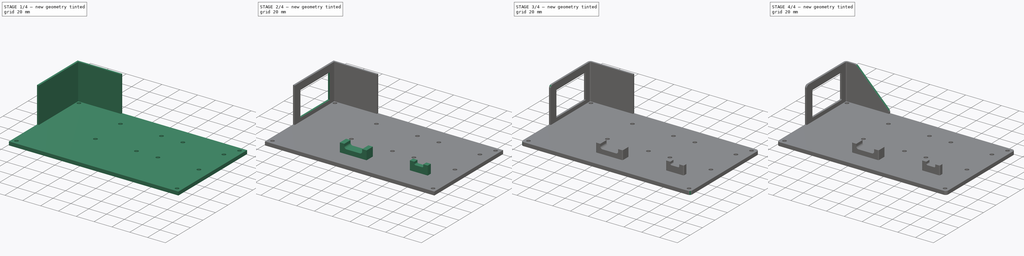
[diagram: build sequence overview — one tinted view per stage of 4, left to right]
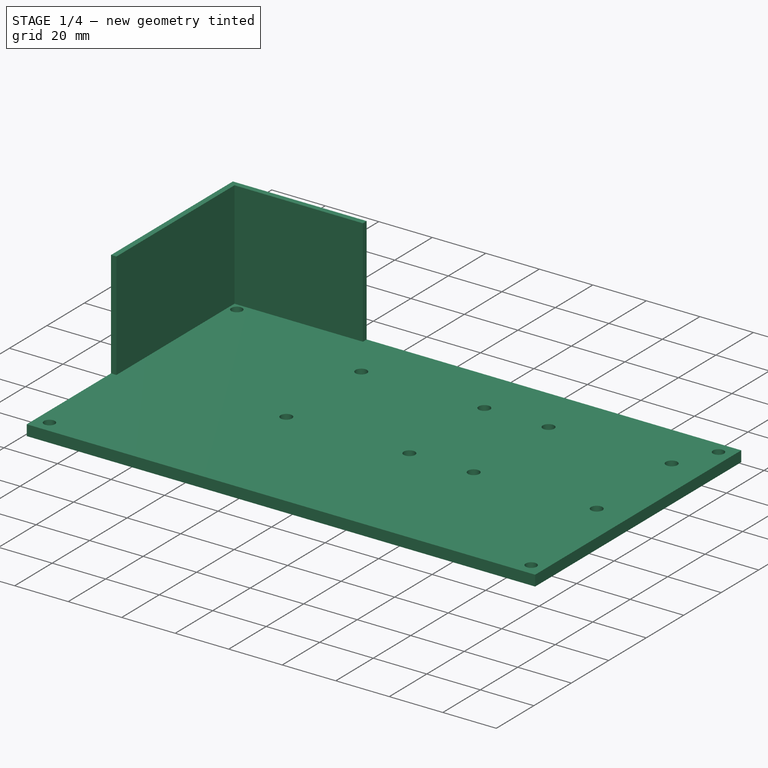
[diagram: stage 1 of 4 — iso view after this stage's code; geometry added in this stage tinted green]
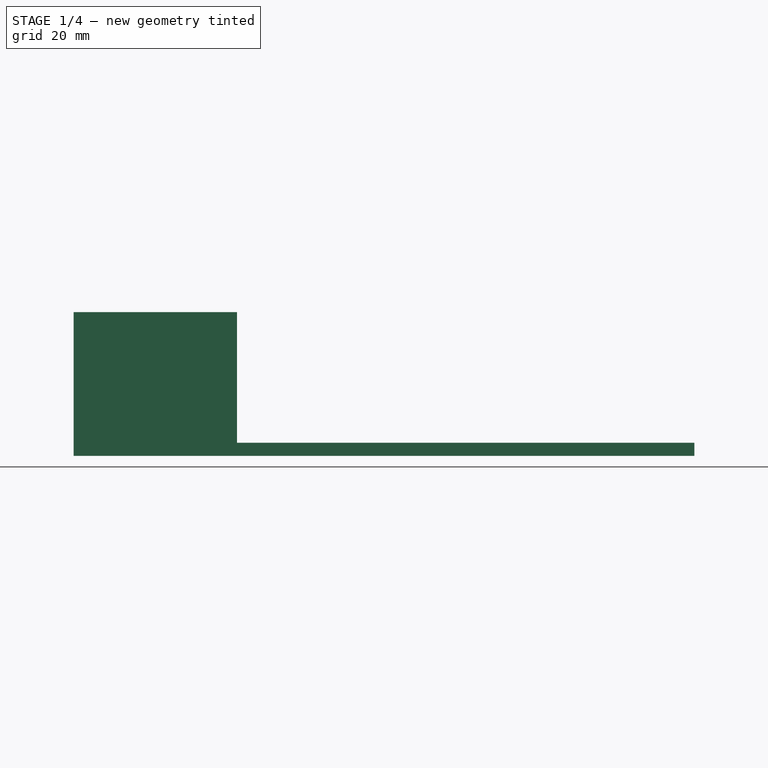
[diagram: stage 1 of 4 — front view after this stage's code; geometry added in this stage tinted green]
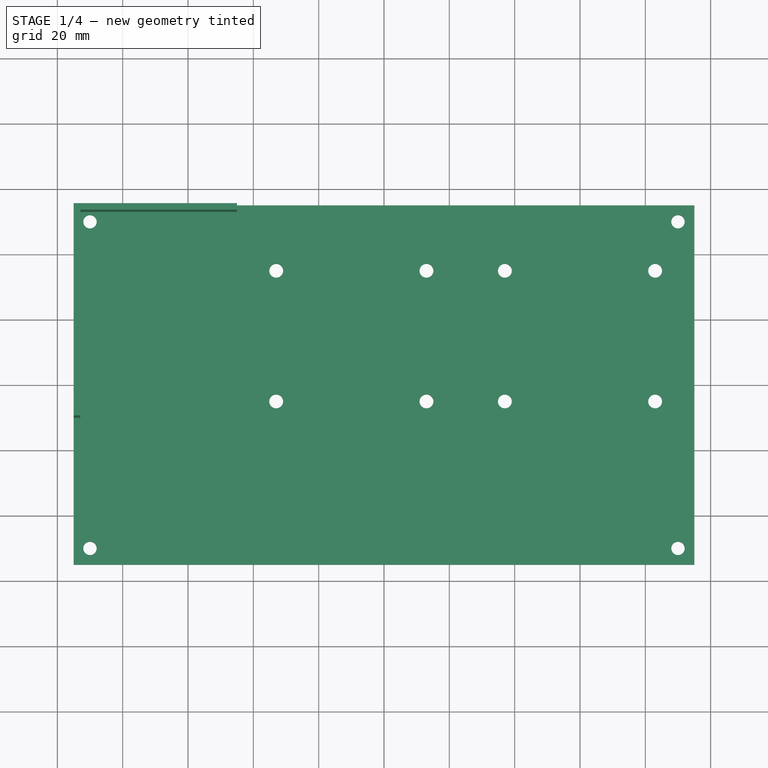
[diagram: stage 1 of 4 — top view after this stage's code; geometry added in this stage tinted green]
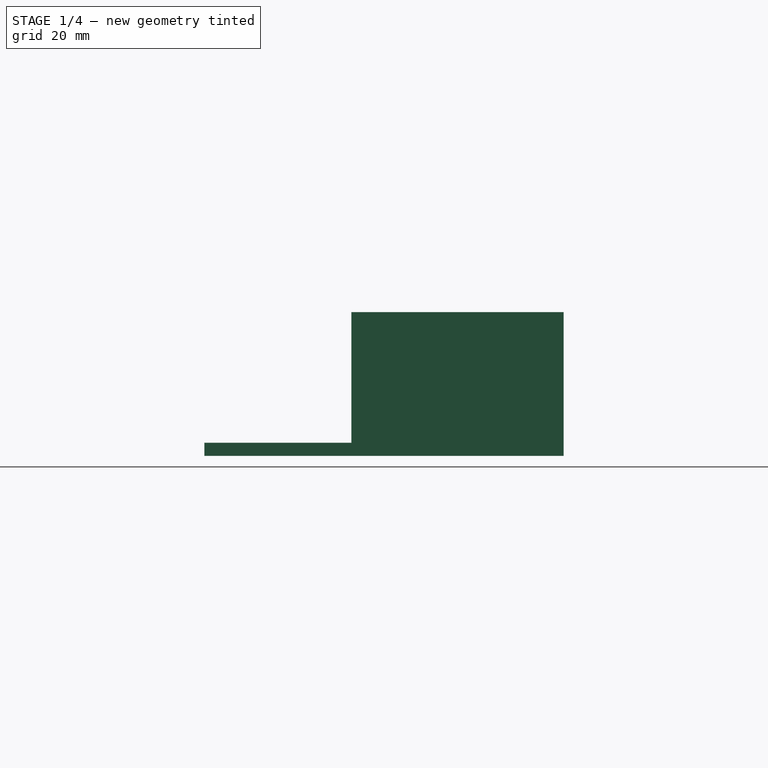
[diagram: stage 1 of 4 — right view after this stage's code; geometry added in this stage tinted green]
FCSTD DOCUMENT  (FreeCAD 0.19R)
Label: power_supply_base
License: All rights reserved
LicenseURL: http://en.wikipedia.org/wiki/All_rights_reserved
objects: Sketcher::SketchObject×6, PartDesign::Fillet×6, PartDesign::Pad×3, PartDesign::Pocket×3, PartDesign::Chamfer×1, PartDesign::Body×1
note: 33 computed .brp shape members not serialized (recipe doc carries the construction recipe); baked Part::Feature solids carry a one-line shape summary decoded from their .brp

FEATURE [Sketcher::SketchObject] Sketch
  FullyConstrained = true
  MapMode = 5
  Support = -> [XY_Plane]
  sketch-geometry (17):
    g0: LineSegment StartX=-95 StartY=55 StartZ=0 EndX=95 EndY=55 EndZ=0
    g1: LineSegment StartX=95 StartY=55 StartZ=0 EndX=95 EndY=-55 EndZ=0
    g2: LineSegment StartX=95 StartY=-55 StartZ=0 EndX=-95 EndY=-55 EndZ=0
    g3: LineSegment StartX=-95 StartY=-55 StartZ=0 EndX=-95 EndY=55 EndZ=0
    g4: LineSegment StartX=95 StartY=15 StartZ=0 EndX=-45 EndY=15 EndZ=0
    g5: LineSegment StartX=-10 StartY=55 StartZ=0 EndX=-10 EndY=-10 EndZ=0
    g6: LineSegment StartX=60 StartY=55 StartZ=0 EndX=60 EndY=-10 EndZ=0
    g7: Circle CenterX=-33 CenterY=35 CenterZ=0 NormalX=0 NormalY=0 NormalZ=1 AngleXU=0 Radius=2.125
    g8: Circle CenterX=-33 CenterY=-5 CenterZ=0 NormalX=0 NormalY=0 NormalZ=1 AngleXU=0 Radius=2.125
    g9: Circle CenterX=13 CenterY=-5 CenterZ=0 NormalX=0 NormalY=0 NormalZ=1 AngleXU=0 Radius=2.125
    g10: Circle CenterX=13 CenterY=35 CenterZ=0 NormalX=0 NormalY=0 NormalZ=1 AngleXU=0 Radius=2.125
    g11: Circle CenterX=37 CenterY=35 CenterZ=0 NormalX=0 NormalY=0 NormalZ=1 AngleXU=0 Radius=2.125
    g12: Circle CenterX=37 CenterY=-5 CenterZ=0 NormalX=0 NormalY=0 NormalZ=1 AngleXU=0 Radius=2.125
    g13: Circle CenterX=83 CenterY=-5 CenterZ=0 NormalX=0 NormalY=0 NormalZ=1 AngleXU=0 Radius=2.125
    g14: Circle CenterX=83 CenterY=35 CenterZ=0 NormalX=0 NormalY=0 NormalZ=1 AngleXU=0 Radius=2.125
    g15: LineSegment StartX=-33 StartY=-5 StartZ=0 EndX=13 EndY=-5 EndZ=0
    g16: LineSegment StartX=37 StartY=-5 StartZ=0 EndX=83 EndY=-5 EndZ=0
  constraints (46):
    c: Coincident(g0,g1)
    c: Coincident(g1,g2)
    c: Coincident(g2,g3)
    c: Coincident(g3,g0)
    c: Horizontal(g0)
    c: Vertical(g3)
    c: Symmetric(g2,g1,g-2)
    c: Symmetric(g1,g0,g-1)
    c: DistanceX(g2,g2) = 190
    c: DistanceY(g3,g3) = 110
    c: PointOnObject(g4,g1)
    c: Horizontal(g4)
    c: PointOnObject(g5,g0)
    c: Vertical(g5)
    c: PointOnObject(g6,g0)
    c: Vertical(g6)
    c: Equal(g5,g6)
    c: DistanceY(g4,g0) = 40
    c: DistanceY(g5,g5) = 65
    c: DistanceX(g5,g6) = 70
    c: DistanceX(g4,g4) = 140
    c: DistanceX(g6,g4) = 35
    c: Symmetric(g14,g11,g6)
    c: Symmetric(g10,g7,g5)
    c: Symmetric(g8,g7,g4)
    c: Vertical(g9,g10)
    c: Symmetric(g12,g11,g4)
    c: Vertical(g13,g14)
    c: Horizontal(g13,g12)
    c: Horizontal(g9,g8)
    c: Equal(g7,g8)
    c: Equal(g8,g10)
    c: Equal(g10,g9)
    c: Equal(g9,g12)
    c: Equal(g12,g11)
    c: Equal(g11,g14)
    c: Equal(g14,g13)
    c: Diameter(g10) = 4.25
    c: Horizontal(g10,g11)
    c: Coincident(g15,g8)
    c: Coincident(g15,g9)
    c: Coincident(g16,g12)
    c: Coincident(g16,g13)
    c: Equal(g15,g16)
    c: DistanceX(g11,g14) = 46
    c: DistanceY(g13,g14) = 40
FEATURE [PartDesign::Pad] Pad
  Direction = (1,1,1)
  Length = 4
  Length2 = 100
  Profile = -> Sketch
  Type = 0
FEATURE [Sketcher::SketchObject] Sketch001
  FullyConstrained = true
  MapMode = 5
  Placement = pos=(0,0,4) rot=(0,0,1;0rad)
  Support = -> [Pad]
  sketch-geometry (6):
    g0: LineSegment StartX=-95 StartY=-10 StartZ=0 EndX=-95 EndY=55 EndZ=0
    g1: LineSegment StartX=-95 StartY=55 StartZ=0 EndX=-45 EndY=55 EndZ=0
    g2: LineSegment StartX=-45 StartY=55 StartZ=0 EndX=-45 EndY=53 EndZ=0
    g3: LineSegment StartX=-45 StartY=53 StartZ=0 EndX=-93 EndY=53 EndZ=0
    g4: LineSegment StartX=-93 StartY=53 StartZ=0 EndX=-93 EndY=-10 EndZ=0
    g5: LineSegment StartX=-93 StartY=-10 StartZ=0 EndX=-95 EndY=-10 EndZ=0
  constraints (18):
    c: Vertical(g0)
    c: Coincident(g0,g1)
    c: Horizontal(g1)
    c: Coincident(g1,g2)
    c: Coincident(g2,g3)
    c: Horizontal(g3)
    c: Coincident(g3,g4)
    c: Vertical(g4)
    c: Coincident(g4,g5)
    c: Coincident(g5,g0)
    c: Horizontal(g5)
    c: Vertical(g2)
    c: DistanceX(g5,g5) = 2
    c: DistanceX(g0,g-1) = 95
    c: DistanceY(g-1,g1) = 55
    c: Equal(g2,g5)
    c: DistanceY(g0,g0) = 65
    c: DistanceX(g1,g1) = 50
FEATURE [PartDesign::Pad] Pad001
  BaseFeature = -> Pad
  Direction = (1,1,1)
  Length = 40
  Length2 = 100
  Profile = -> Sketch001
  Type = 0
FEATURE [Sketcher::SketchObject] Sketch002
  FullyConstrained = true
  MapMode = 5
  Placement = pos=(0,0,4) rot=(0,0,1;0rad)
  Support = -> [Pad001]
  sketch-geometry (4):
    g0: Circle CenterX=-90 CenterY=50 CenterZ=0 NormalX=0 NormalY=0 NormalZ=1 AngleXU=0 Radius=2.05
    g1: Circle CenterX=-90 CenterY=-50 CenterZ=0 NormalX=0 NormalY=0 NormalZ=1 AngleXU=0 Radius=2.05
    g2: Circle CenterX=90 CenterY=-50 CenterZ=0 NormalX=0 NormalY=0 NormalZ=1 AngleXU=0 Radius=2.05
    g3: Circle CenterX=90 CenterY=50 CenterZ=0 NormalX=0 NormalY=0 NormalZ=1 AngleXU=0 Radius=2.05
  constraints (10):
    c: Equal(g3,g0)
    c: Equal(g0,g1)
    c: Equal(g1,g2)
    c: Symmetric(g0,g3,g-2)
    c: Symmetric(g0,g1,g-1)
    c: Horizontal(g1,g2)
    c: Vertical(g3,g2)
    c: DistanceX(g1,g2) = 180
    c: DistanceY(g2,g3) = 100
    c: Diameter(g3) = 4.1
FEATURE [PartDesign::Pocket] Pocket
  BaseFeature = -> Pad001
  Length = 5
  Length2 = 100
  Profile = -> Sketch002
  Type = 1
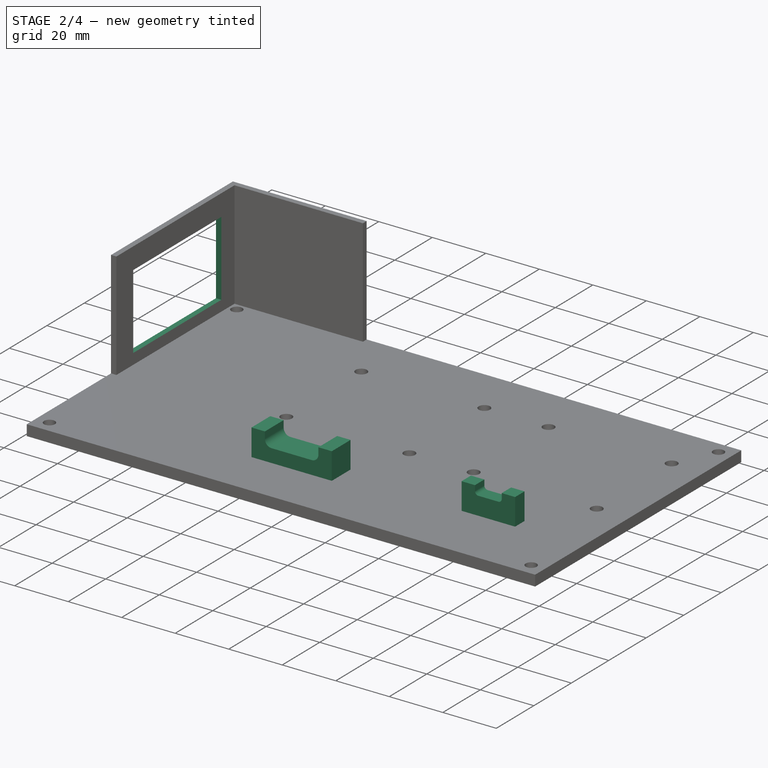
[diagram: stage 2 of 4 — iso view after this stage's code; geometry added in this stage tinted green]
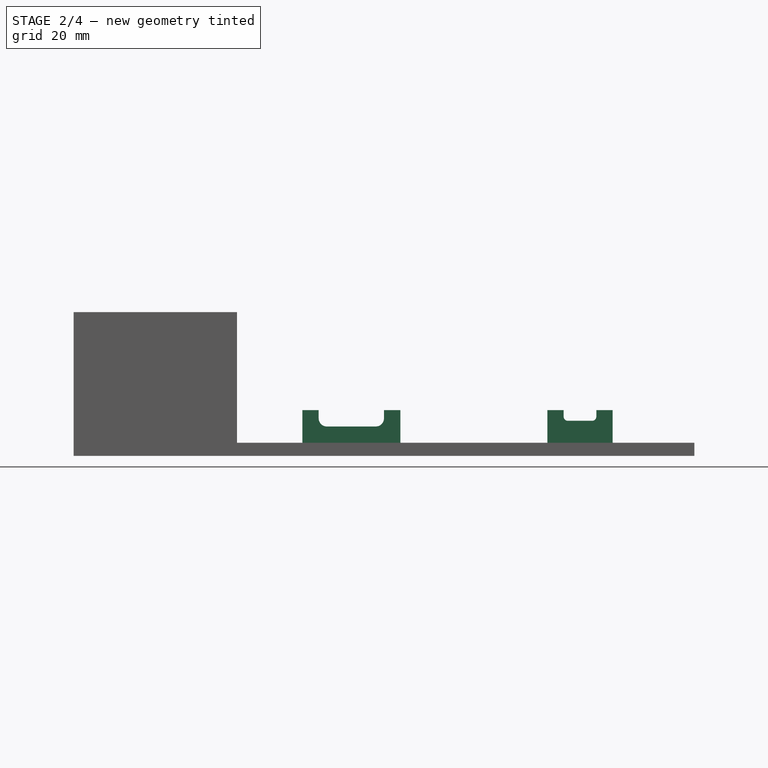
[diagram: stage 2 of 4 — front view after this stage's code; geometry added in this stage tinted green]
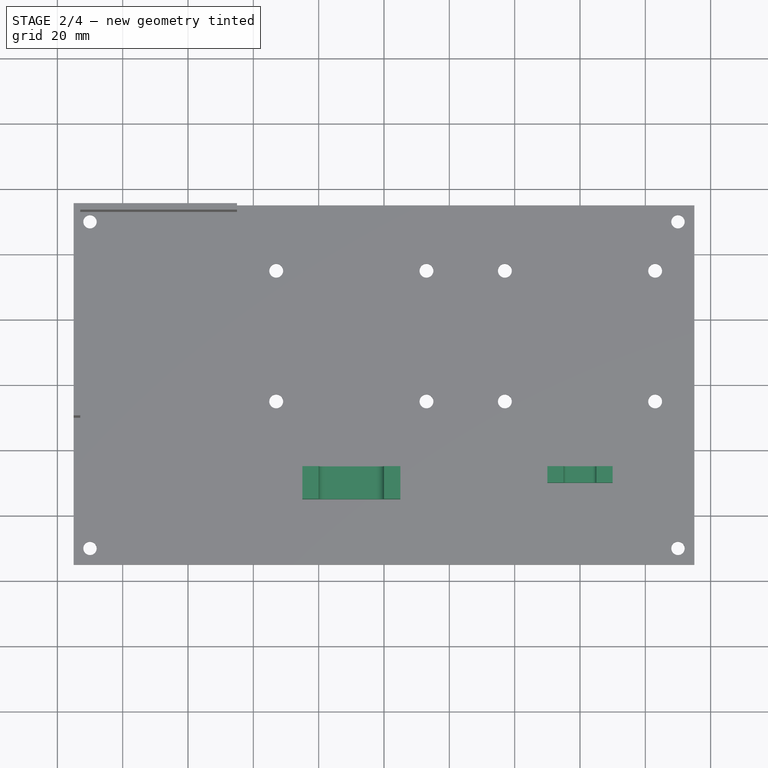
[diagram: stage 2 of 4 — top view after this stage's code; geometry added in this stage tinted green]
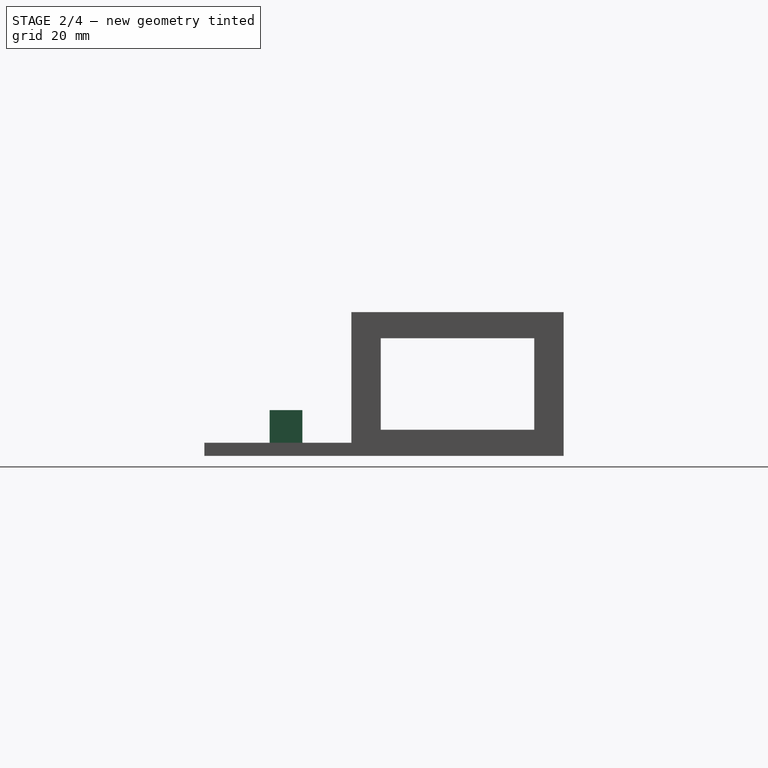
[diagram: stage 2 of 4 — right view after this stage's code; geometry added in this stage tinted green]
FEATURE [Sketcher::SketchObject] Sketch003
  FullyConstrained = true
  MapMode = 5
  Placement = pos=(0,0,4) rot=(0,0,1;0rad)
  Support = -> [Pocket]
  sketch-geometry (8):
    g0: LineSegment StartX=-25 StartY=-25 StartZ=0 EndX=5 EndY=-25 EndZ=0
    g1: LineSegment StartX=5 StartY=-25 StartZ=0 EndX=5 EndY=-35 EndZ=0
    g2: LineSegment StartX=5 StartY=-35 StartZ=0 EndX=-25 EndY=-35 EndZ=0
    g3: LineSegment StartX=-25 StartY=-35 StartZ=0 EndX=-25 EndY=-25 EndZ=0
    g4: LineSegment StartX=50 StartY=-25 StartZ=0 EndX=70 EndY=-25 EndZ=0
    g5: LineSegment StartX=70 StartY=-25 StartZ=0 EndX=70 EndY=-30 EndZ=0
    g6: LineSegment StartX=70 StartY=-30 StartZ=0 EndX=50 EndY=-30 EndZ=0
    g7: LineSegment StartX=50 StartY=-30 StartZ=0 EndX=50 EndY=-25 EndZ=0
  constraints (24):
    c: Coincident(g0,g1)
    c: Coincident(g1,g2)
    c: Coincident(g2,g3)
    c: Coincident(g3,g0)
    c: Horizontal(g0)
    c: Horizontal(g2)
    c: Vertical(g1)
    c: Vertical(g3)
    c: Coincident(g4,g5)
    c: Coincident(g5,g6)
    c: Coincident(g6,g7)
    c: Coincident(g7,g4)
    c: Horizontal(g4)
    c: Horizontal(g6)
    c: Vertical(g5)
    c: Vertical(g7)
    c: DistanceX(g6,g6) = 20
    c: DistanceY(g5,g5) = 5
    c: DistanceY(g1,g1) = 10
    c: DistanceX(g2,g2) = 30
    c: Horizontal(g0,g4)
    c: DistanceX(g0,g-1) = 25
    c: DistanceX(g-1,g4) = 70
    c: DistanceY(g0,g-1) = 25
FEATURE [PartDesign::Pad] Pad002
  BaseFeature = -> Pocket
  Direction = (1,1,1)
  Length = 10
  Length2 = 100
  Profile = -> Sketch003
  Type = 0
FEATURE [Sketcher::SketchObject] Sketch004
  FullyConstrained = true
  MapMode = 5
  Placement = pos=(0,-25,0) rot=(0,0.707107,0.707107;3.14159rad)
  Support = -> [Pad002]
  sketch-geometry (12):
    g0: LineSegment StartX=6e-16 StartY=14 StartZ=0 EndX=20 EndY=14 EndZ=0
    g1: LineSegment StartX=2.5 StartY=9 StartZ=0 EndX=17.5 EndY=9 EndZ=0
    g2: LineSegment StartX=-65 StartY=14 StartZ=0 EndX=-55 EndY=14 EndZ=0
    g3: LineSegment StartX=-63.75 StartY=10.75 StartZ=0 EndX=-56.25 EndY=10.75 EndZ=0
    g4: LineSegment StartX=-65 StartY=12 StartZ=0 EndX=-65 EndY=14 EndZ=0
    g5: LineSegment StartX=-55 StartY=12 StartZ=0 EndX=-55 EndY=14 EndZ=0
    g6: LineSegment StartX=6e-16 StartY=14 StartZ=0 EndX=6e-16 EndY=11.5 EndZ=0
    g7: LineSegment StartX=20 StartY=14 StartZ=0 EndX=20 EndY=11.5 EndZ=0
    g8: ArcOfCircle CenterX=17.5 CenterY=11.5 CenterZ=0 NormalX=0 NormalY=0 NormalZ=1 AngleXU=0 Radius=2.5 StartAngle=4.71239 EndAngle=6.28319
    g9: ArcOfCircle CenterX=2.5 CenterY=11.5 CenterZ=0 NormalX=0 NormalY=0 NormalZ=1 AngleXU=0 Radius=2.5 StartAngle=3.14159 EndAngle=4.71239
    g10: ArcOfCircle CenterX=-56.25 CenterY=12 CenterZ=0 NormalX=0 NormalY=0 NormalZ=1 AngleXU=0 Radius=1.25 StartAngle=4.71239 EndAngle=6.28319
    g11: ArcOfCircle CenterX=-63.75 CenterY=12 CenterZ=0 NormalX=0 NormalY=0 NormalZ=1 AngleXU=0 Radius=1.25 StartAngle=3.14159 EndAngle=4.71239
  constraints (32):
    c: Horizontal(g0)
    c: Horizontal(g1)
    c: Horizontal(g2)
    c: Horizontal(g3)
    c: Coincident(g4,g2)
    c: Vertical(g4)
    c: Coincident(g5,g2)
    c: Vertical(g5)
    c: Coincident(g6,g0)
    c: Vertical(g6)
    c: Coincident(g7,g0)
    c: Vertical(g7)
    c: DistanceX(g2,g2) = 10
    c: DistanceX(g3,g3) = 7.5
    c: Tangent(g11,g4) = 1.5708
    c: Tangent(g11,g3) = -1.5708
    c: DistanceY(g4,g4) = 2
    c: Tangent(g10,g3) = -1.5708
    c: Tangent(g10,g5) = -1.5708
    c: Equal(g4,g5)
    c: DistanceX(g2,g-1) = 65
    c: DistanceY(g-1,g2) = 14
    c: DistanceX(g0,g0) = 20
    c: Equal(g6,g7)
    c: DistanceX(g1,g1) = 15
    c: Tangent(g9,g6) = -1.5708
    c: Tangent(g8,g7) = 1.5708
    c: Tangent(g9,g1) = -1.5708
    c: Tangent(g8,g1) = -1.5708
    c: DistanceY(g7,g7) = 2.5
    c: DistanceX(g-1,g0) = 20
    c: DistanceY(g-1,g0) = 14
FEATURE [PartDesign::Pocket] Pocket001
  BaseFeature = -> Pad002
  Length = 5
  Length2 = 100
  Profile = -> Sketch004
  Type = 1
FEATURE [Sketcher::SketchObject] Sketch005
  FullyConstrained = true
  MapMode = 5
  Placement = pos=(-95,0,0) rot=(0.57735,-0.57735,-0.57735;2.0944rad)
  Support = -> [Pocket001]
  sketch-geometry (4):
    g0: LineSegment StartX=-46 StartY=36 StartZ=0 EndX=1 EndY=36 EndZ=0
    g1: LineSegment StartX=1 StartY=36 StartZ=0 EndX=1 EndY=8 EndZ=0
    g2: LineSegment StartX=1 StartY=8 StartZ=0 EndX=-46 EndY=8 EndZ=0
    g3: LineSegment StartX=-46 StartY=8 StartZ=0 EndX=-46 EndY=36 EndZ=0
  constraints (12):
    c: Coincident(g0,g1)
    c: Coincident(g1,g2)
    c: Coincident(g2,g3)
    c: Coincident(g3,g0)
    c: Horizontal(g0)
    c: Horizontal(g2)
    c: Vertical(g1)
    c: Vertical(g3)
    c: DistanceY(g3,g3) = 28
    c: DistanceX(g0,g0) = 47
    c: DistanceX(g2,g-1) = 46
    c: DistanceY(g-1,g1) = 8
FEATURE [PartDesign::Pocket] Pocket002
  BaseFeature = -> Pocket001
  Length = 5
  Length2 = 100
  Profile = -> Sketch005
  Type = 0
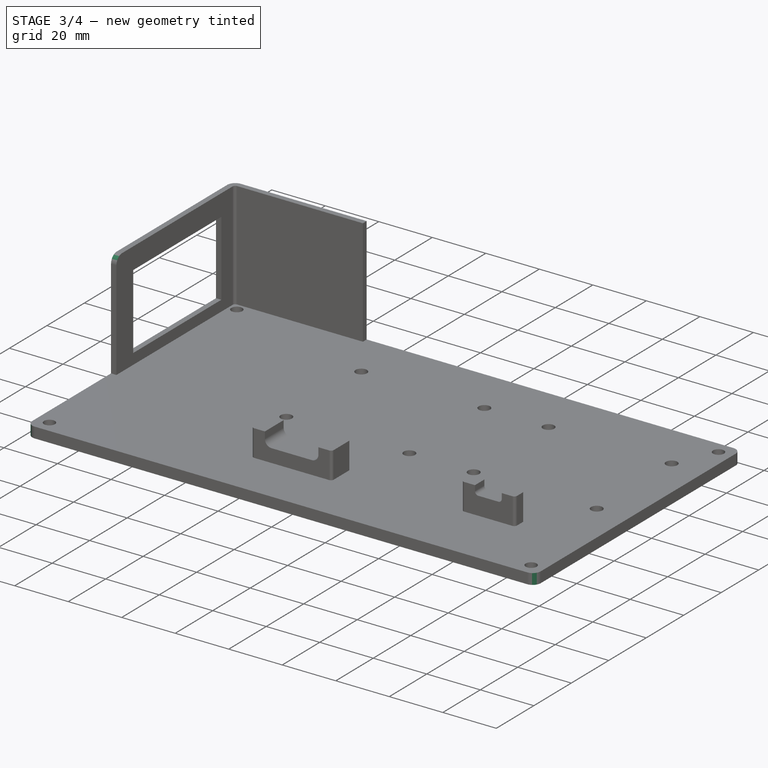
[diagram: stage 3 of 4 — iso view after this stage's code; geometry added in this stage tinted green]
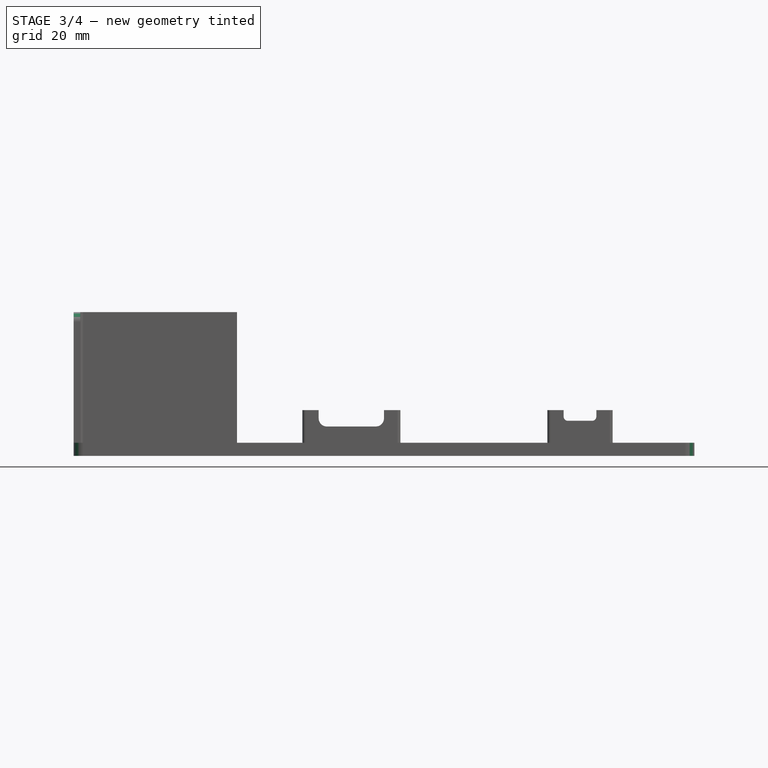
[diagram: stage 3 of 4 — front view after this stage's code; geometry added in this stage tinted green]
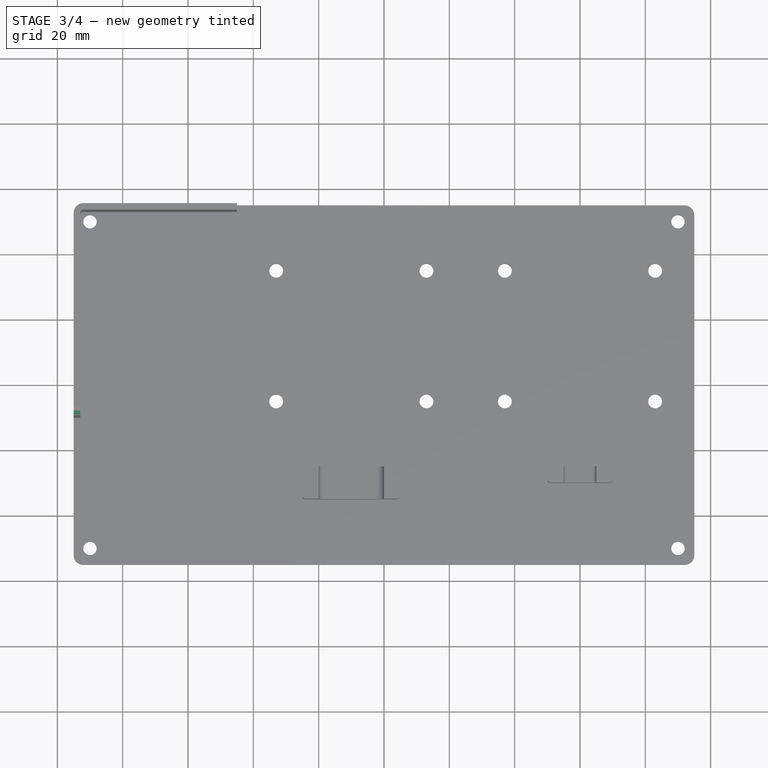
[diagram: stage 3 of 4 — top view after this stage's code; geometry added in this stage tinted green]
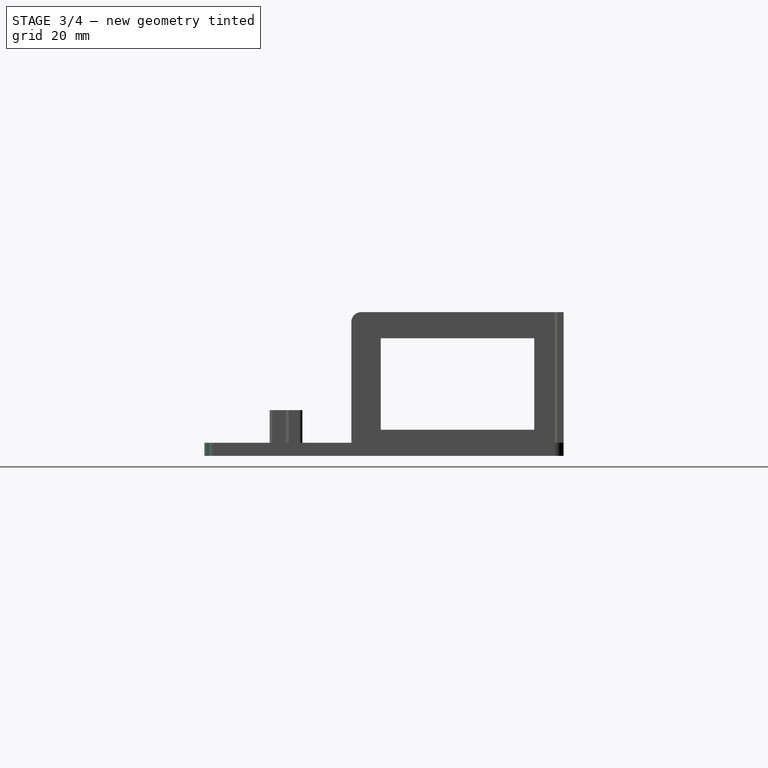
[diagram: stage 3 of 4 — right view after this stage's code; geometry added in this stage tinted green]
FEATURE [PartDesign::Fillet] Fillet
  Base = -> Pocket002 [Edge77]
  BaseFeature = -> Pocket002
  Radius = 1
  SupportTransform = false
FEATURE [PartDesign::Fillet] Fillet001
  Base = -> Fillet [Edge121,Edge51,Edge49,Edge44]
  BaseFeature = -> Fillet
  Radius = 3
  SupportTransform = false
FEATURE [PartDesign::Fillet] Fillet002
  Base = -> Fillet001 [Edge101,Edge104,Edge102,Edge75,Edge78,Edge76,Edge67,Edge93]
  BaseFeature = -> Fillet001
  Radius = 1
  SupportTransform = false
FEATURE [PartDesign::Fillet] Fillet003
  Base = -> Fillet002 [Edge97]
  BaseFeature = -> Fillet002
  Radius = 3
  SupportTransform = false
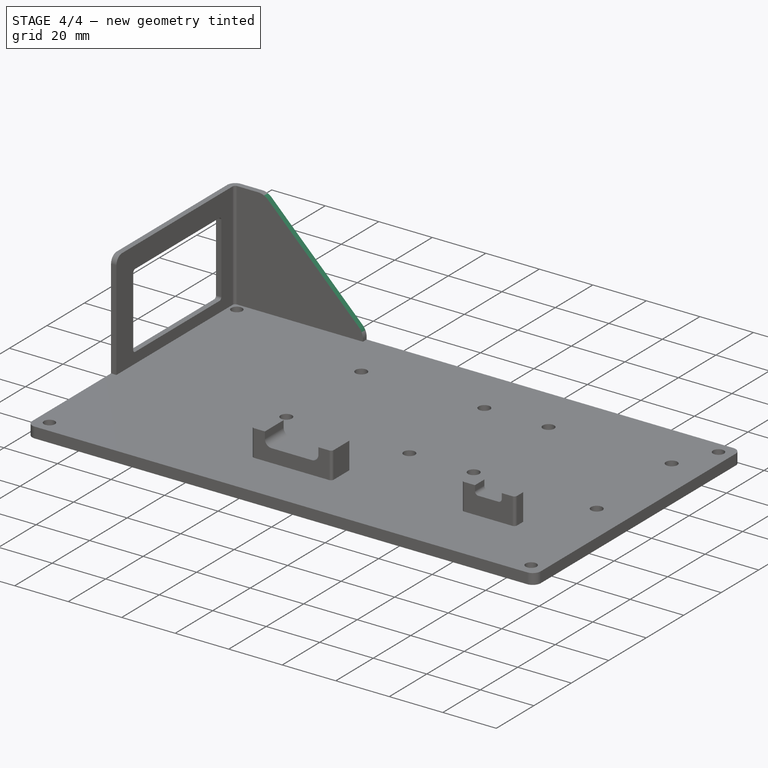
[diagram: stage 4 of 4 — iso view after this stage's code; geometry added in this stage tinted green]
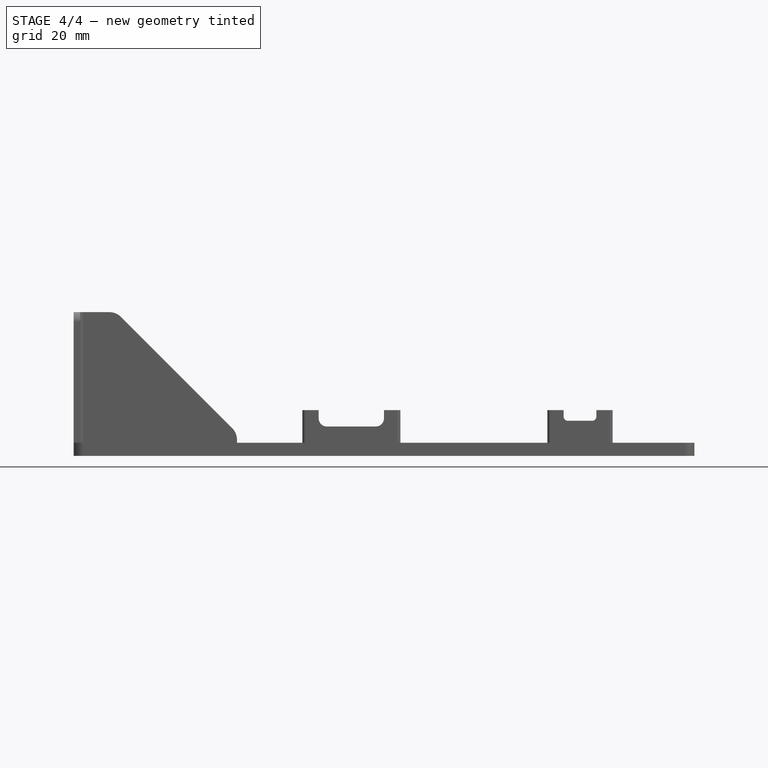
[diagram: stage 4 of 4 — front view after this stage's code; geometry added in this stage tinted green]
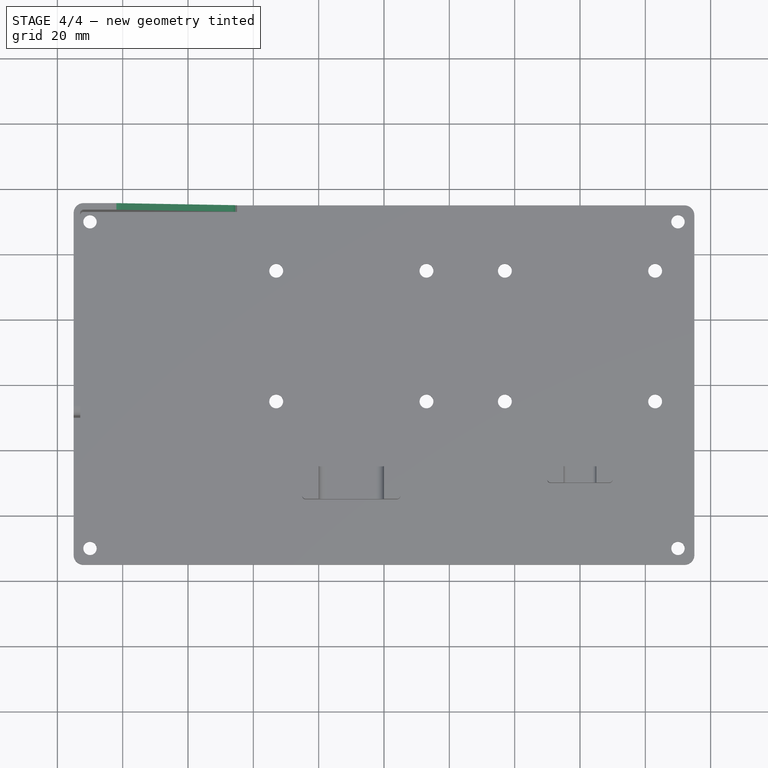
[diagram: stage 4 of 4 — top view after this stage's code; geometry added in this stage tinted green]
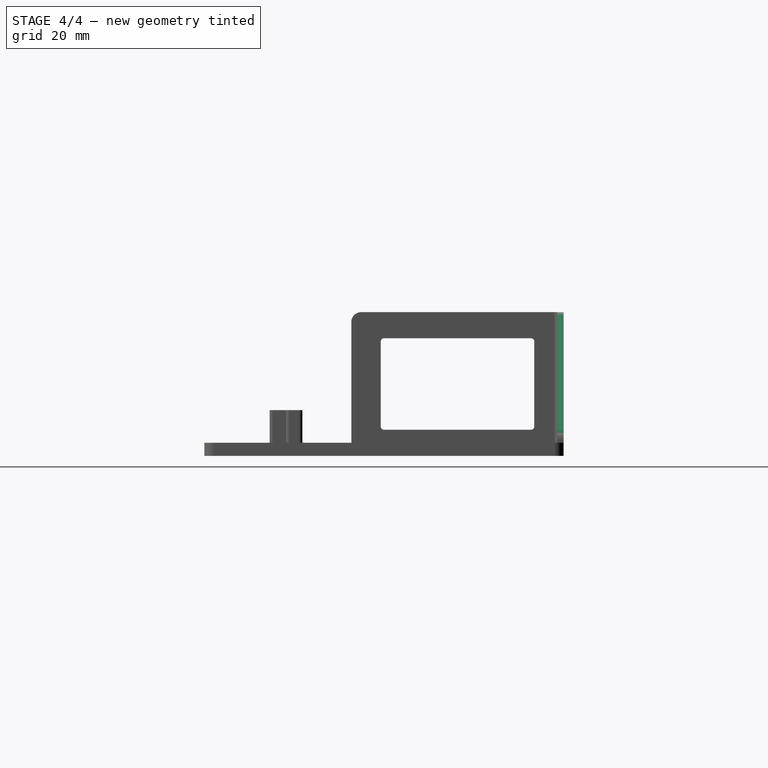
[diagram: stage 4 of 4 — right view after this stage's code; geometry added in this stage tinted green]
FEATURE [PartDesign::Chamfer] Chamfer
  Angle = 45
  Base = -> Fillet003 [Edge57]
  BaseFeature = -> Fillet003
  ChamferType = 0
  FlipDirection = false
  Size = 37
  Size2 = 1
  SupportTransform = false
FEATURE [PartDesign::Fillet] Fillet004
  Base = -> Chamfer [Edge13,Edge2]
  BaseFeature = -> Chamfer
  Radius = 5
  SupportTransform = false
FEATURE [PartDesign::Fillet] Fillet005
  Base = -> Fillet004 [Edge88,Edge87,Edge90,Edge89]
  BaseFeature = -> Fillet004
  Radius = 1
  SupportTransform = false
FEATURE [PartDesign::Body] Body
  Group = -> [Sketch,Pad,Sketch001,Pad001,Sketch002,Pocket,Sketch003,Pad002,Sketch004,Pocket001,Sketch005,Pocket002,Fillet,Fillet001,Fillet002,Fillet003,Chamfer,Fillet004,Fillet005]
  Origin = -> Origin
  Tip = -> Fillet005
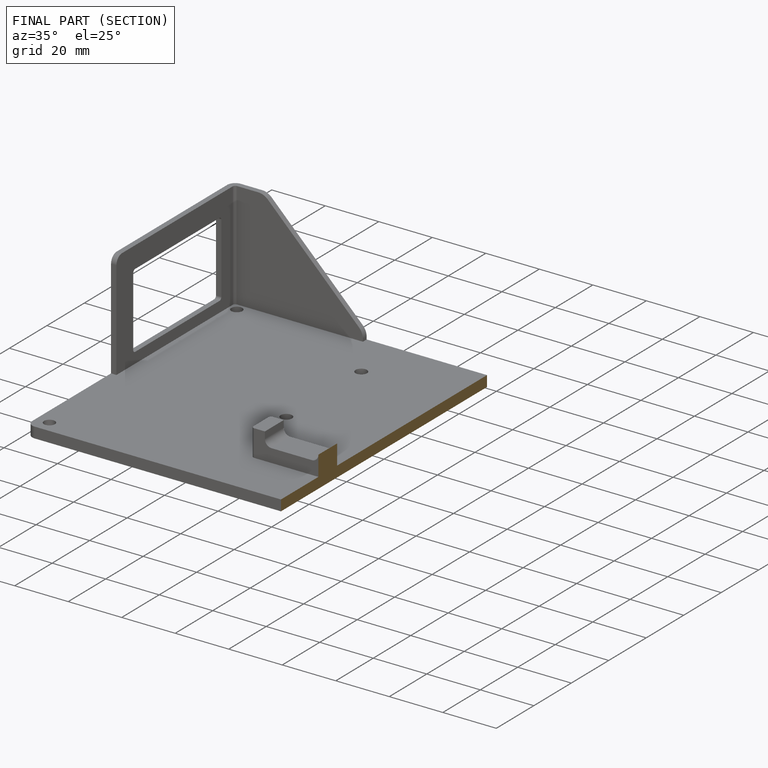
[diagram: finished part — half-section view (interior)]
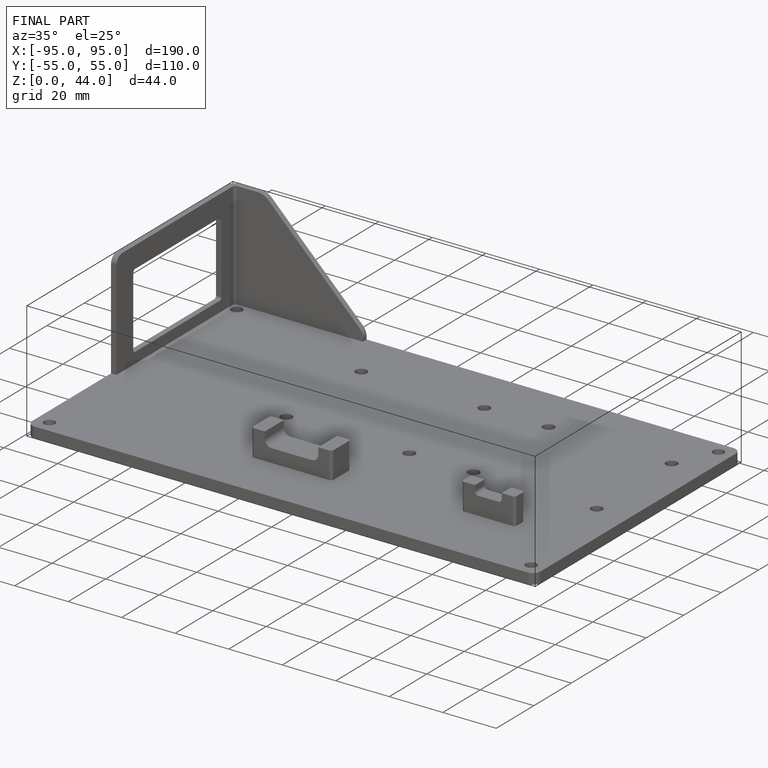
[diagram: finished part — iso view with bounding-box wireframe]
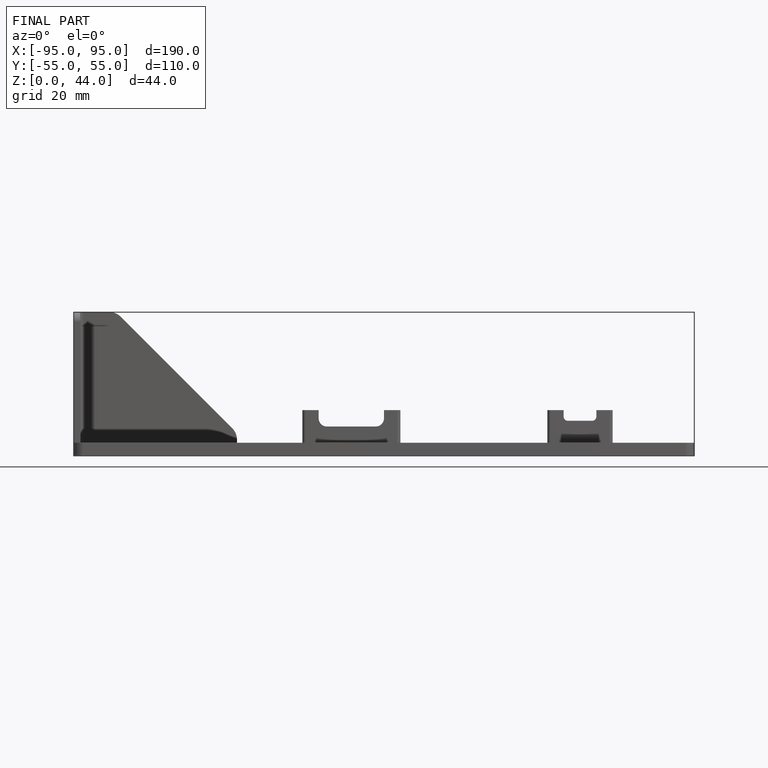
[diagram: finished part — front view with bounding-box wireframe]
